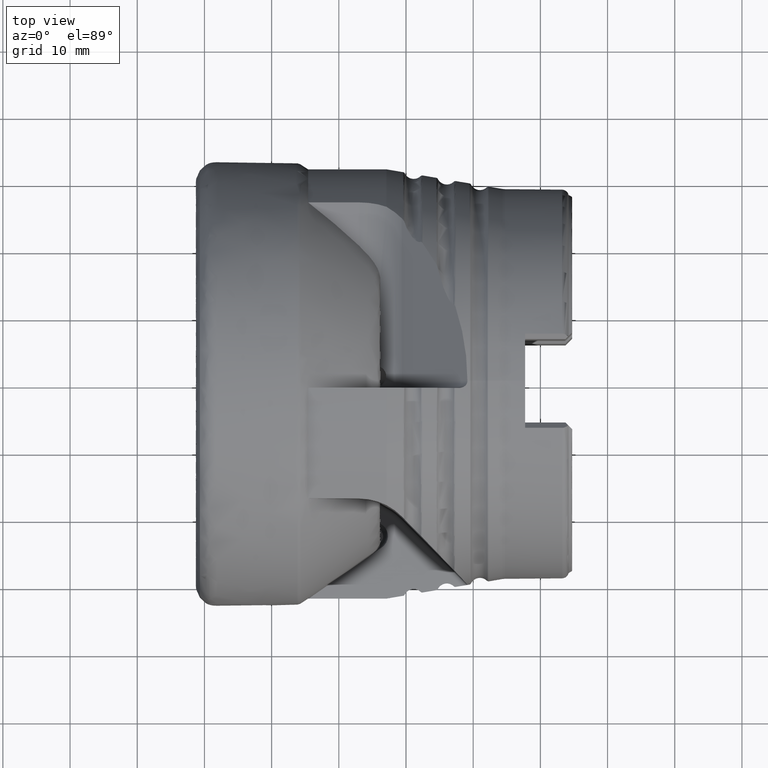
[diagram: clean part render]
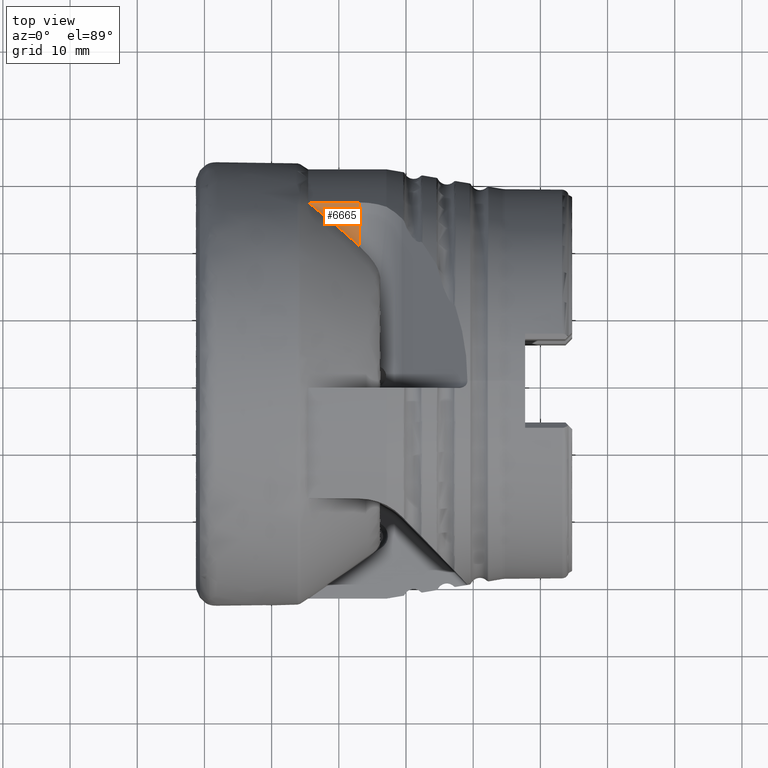
[diagram: same view with one face highlighted and labeled with its STEP entity id]
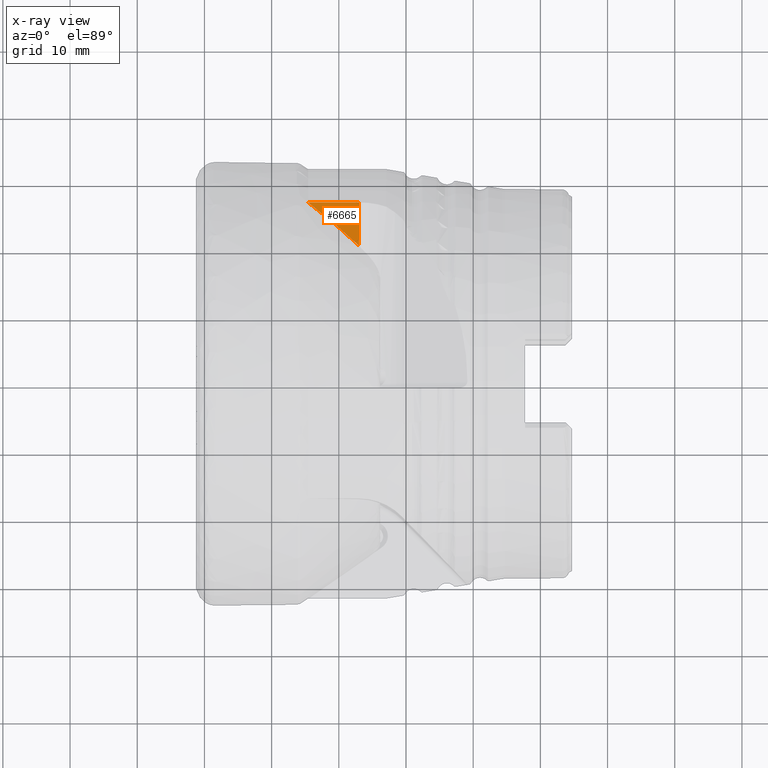
[diagram: x-ray of the same camera — body ghosted, the highlighted face saturated]
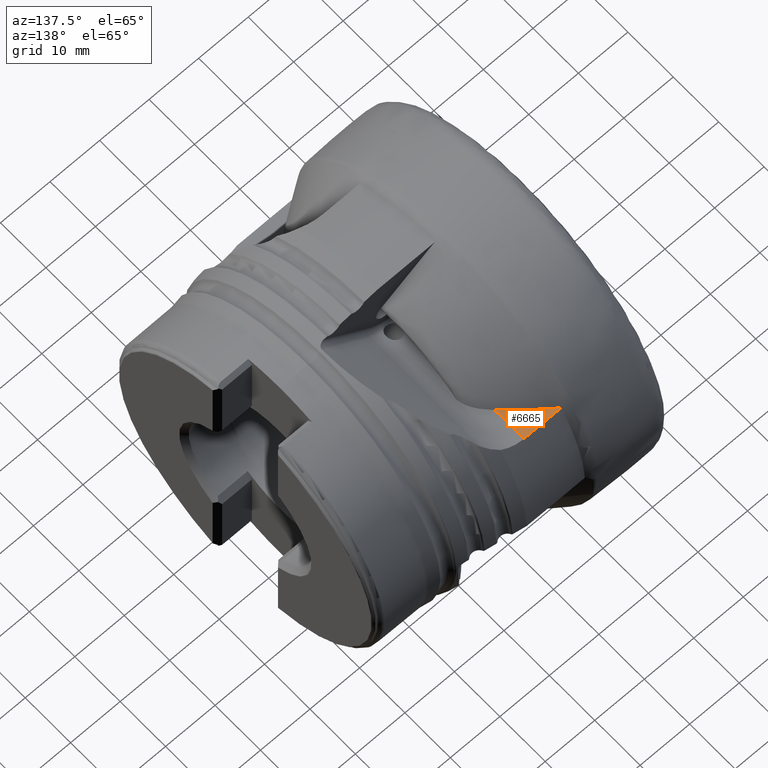
[diagram: same view with one face highlighted and labeled with its STEP entity id]
A machine part, top view. The second image highlights one B-rep face of the part: STEP entity #6665.
The next image is the same camera in x-ray: the body ghosted, the highlighted face saturated — about 0% of this face is hidden behind the body in this view.
A second angle (auxiliary view) of the same face is appended — the face is thin or edge-on in the first view.
In plain terms, the highlighted planar face has unit normal (0, -0, 1).
Its self-contained STEP definition (entity closure, byte-faithful):
#46 = ORIENTED_EDGE ( 'NONE', *, *, #2465, .F. ) ;
#182 = FACE_OUTER_BOUND ( 'NONE', #540, .T. ) ;
#203 = VECTOR ( 'NONE', #4929, 1000.000000000000000 ) ;
#540 = EDGE_LOOP ( 'NONE', ( #46, #6392, #2576 ) ) ;
#868 = DIRECTION ( 'NONE',  ( 1.000000000000000000, 0.0000000000000000000, -1.508455196501571400E-016 ) ) ;
#1151 = EDGE_CURVE ( 'NONE', #3739, #3492, #5108, .T. ) ;
#1381 = CARTESIAN_POINT ( 'NONE',  ( 23.00000000000000000, 31.94999999999999900, 17.50000000000000000 ) ) ;
#1738 = VERTEX_POINT ( 'NONE', #5346 ) ;
#2271 = DIRECTION ( 'NONE',  ( 0.0000000000000000000, -1.000000000000000000, -6.123031769111886300E-017 ) ) ;
#2275 = CARTESIAN_POINT ( 'NONE',  ( 15.43193174329226000, 26.73111482897784400, 17.50000000000000000 ) ) ;
#2344 = VECTOR ( 'NONE', #2271, 1000.000000000000000 ) ;
#2465 = EDGE_CURVE ( 'NONE', #3492, #1738, #5673, .T. ) ;
#2576 = ORIENTED_EDGE ( 'NONE', *, *, #4248, .T. ) ;
#2711 = CARTESIAN_POINT ( 'NONE',  ( 2.639796593877750100E-015, 26.73111482897784400, 17.50000000000000000 ) ) ;
#2815 = CARTESIAN_POINT ( 'NONE',  ( 23.00000000000000000, 20.29013043563599400, 17.50000000000000000 ) ) ;
#2873 = LINE ( 'NONE', #2711, #203 ) ;
#3492 = VERTEX_POINT ( 'NONE', #2815 ) ;
#3508 = PLANE ( 'NONE',  #6240 ) ;
#3739 = VERTEX_POINT ( 'NONE', #3853 ) ;
#3853 = CARTESIAN_POINT ( 'NONE',  ( 23.00000000000000000, 26.73111482897784400, 17.50000000000000000 ) ) ;
#4046 = DIRECTION ( 'NONE',  ( 1.508455196501571400E-016, -6.123031769111886300E-017, 1.000000000000000000 ) ) ;
#4248 = EDGE_CURVE ( 'NONE', #3739, #1738, #2873, .T. ) ;
#4929 = DIRECTION ( 'NONE',  ( -1.000000000000000000, -0.0000000000000000000, -0.0000000000000000000 ) ) ;
#5090 = CARTESIAN_POINT ( 'NONE',  ( 23.00000000000000000, 20.29013043563599400, 17.50000000000000000 ) ) ;
#5108 = LINE ( 'NONE', #5413, #2344 ) ;
#5264 = CARTESIAN_POINT ( 'NONE',  ( 21.79469610359335300, 21.42793640601080100, 17.49999999999999600 ) ) ;
#5325 = CARTESIAN_POINT ( 'NONE',  ( 20.55738306844267500, 22.52938197495727800, 17.49999999999999600 ) ) ;
#5346 = CARTESIAN_POINT ( 'NONE',  ( 15.43193174329226000, 26.73111482897784400, 17.50000000000000000 ) ) ;
#5413 = CARTESIAN_POINT ( 'NONE',  ( 23.00000000000000000, 31.94999999999999900, 17.50000000000000000 ) ) ;
#5673 = B_SPLINE_CURVE_WITH_KNOTS ( 'NONE', 3,
 ( #5090, #5264, #5325, #5724, #5746, #2275 ),
 .UNSPECIFIED., .F., .F.,
 ( 4, 2, 4 ),
 ( 0.0000000000000000000, 0.004969545052339405100, 0.009939090104678810100 ),
 .UNSPECIFIED. ) ;
#5724 = CARTESIAN_POINT ( 'NONE',  ( 18.03090022500159900, 24.67336702658483100, 17.49999999999999300 ) ) ;
#5746 = CARTESIAN_POINT ( 'NONE',  ( 16.74174665442197000, 25.71564699054815900, 17.50000000000002100 ) ) ;
#6240 = AXIS2_PLACEMENT_3D ( 'NONE', #1381, #4046, #868 ) ;
#6392 = ORIENTED_EDGE ( 'NONE', *, *, #1151, .F. ) ;
#6665 = ADVANCED_FACE ( 'NONE', ( #182 ), #3508, .T. ) ;